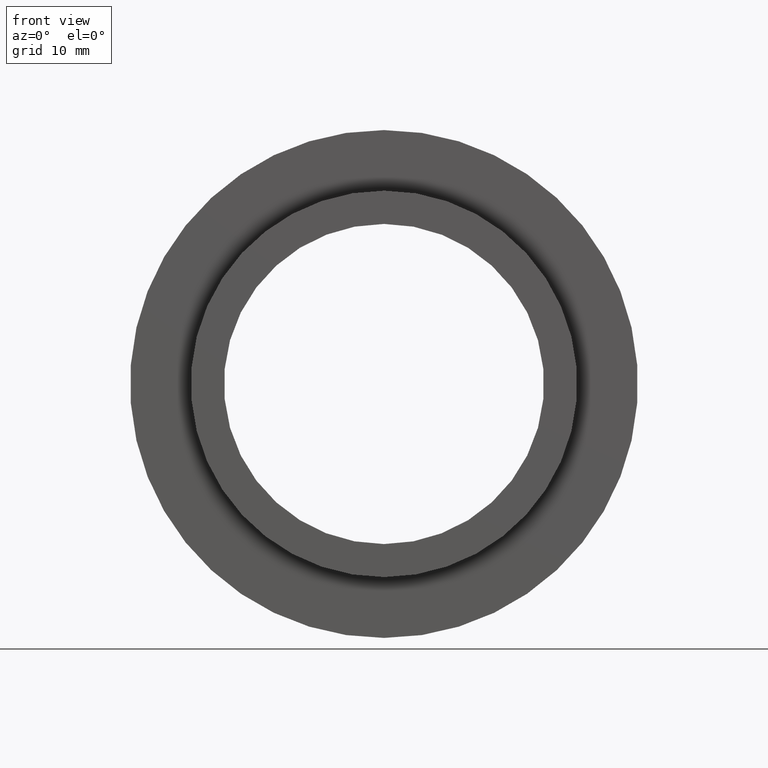
[diagram: clean part render]
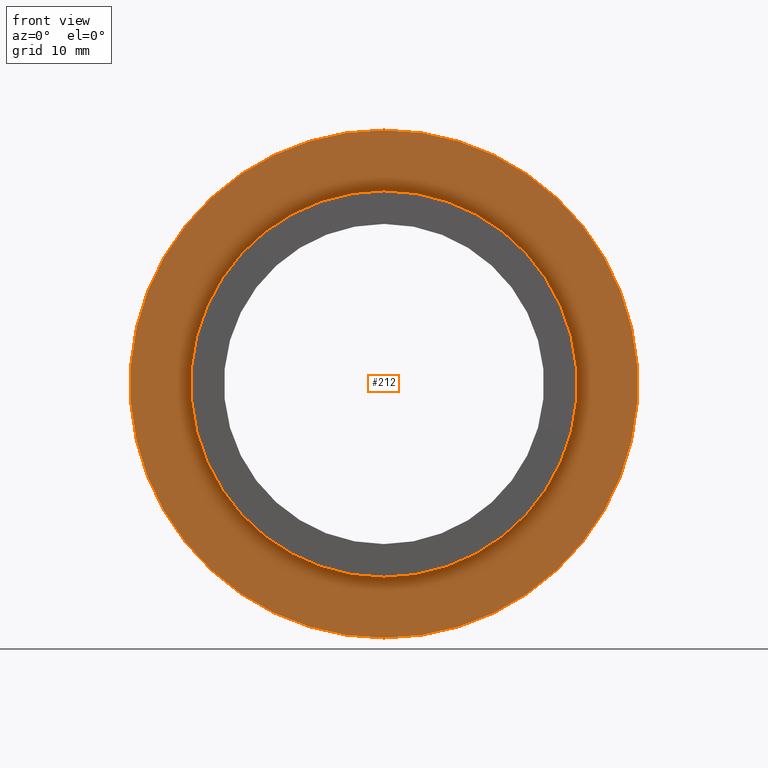
[diagram: same view with one face highlighted and labeled with its STEP entity id]
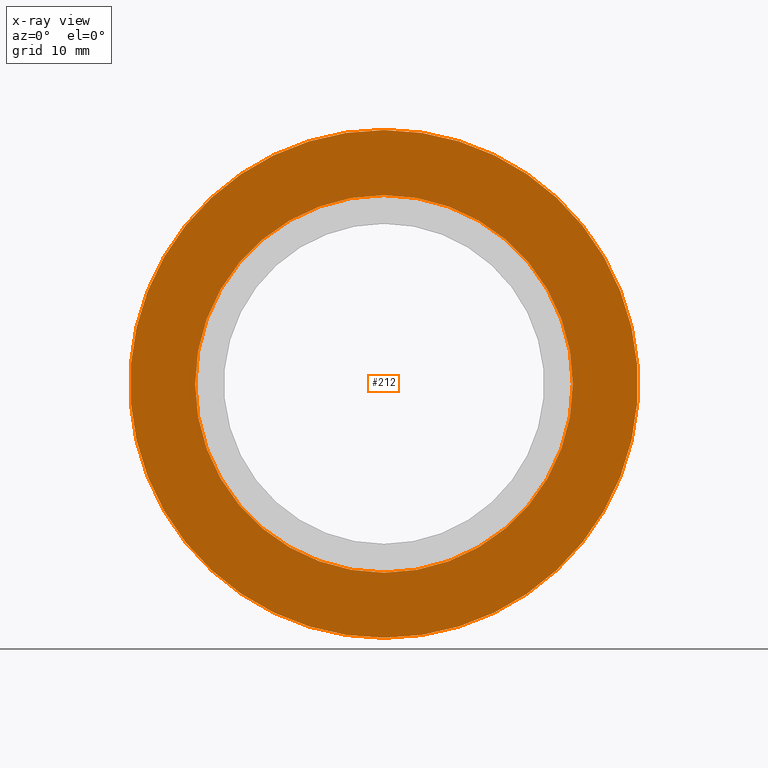
[diagram: x-ray of the same camera — body ghosted, the highlighted face saturated]
A machine part, front view. The second image highlights one B-rep face of the part: STEP entity #212.
The next image is the same camera in x-ray: the body ghosted, the highlighted face saturated — about 0% of this face is hidden behind the body in this view.
In plain terms, the highlighted planar face has unit normal (0, 1, 0).
Its self-contained STEP definition (entity closure, byte-faithful):
#10 = AXIS2_PLACEMENT_3D ( 'NONE', #488, #79, #645 ) ;
#27 = DIRECTION ( 'NONE',  ( -0.0000000000000000000, -1.000000000000000000, -0.0000000000000000000 ) ) ;
#44 = CARTESIAN_POINT ( 'NONE',  ( 2.816687638038912400E-015, 4.999999999999997300, 23.00000000000000000 ) ) ;
#67 = DIRECTION ( 'NONE',  ( 0.0000000000000000000, 0.0000000000000000000, -1.000000000000000000 ) ) ;
#79 = DIRECTION ( 'NONE',  ( 0.0000000000000000000, 1.000000000000000000, 0.0000000000000000000 ) ) ;
#94 = EDGE_CURVE ( 'NONE', #666, #118, #640, .T. ) ;
#116 = FACE_BOUND ( 'NONE', #181, .T. ) ;
#117 = DIRECTION ( 'NONE',  ( -0.0000000000000000000, -1.000000000000000000, -0.0000000000000000000 ) ) ;
#118 = VERTEX_POINT ( 'NONE', #588 ) ;
#146 = CIRCLE ( 'NONE', #596, 17.10000000000000100 ) ;
#167 = DIRECTION ( 'NONE',  ( 0.0000000000000000000, 0.0000000000000000000, -1.000000000000000000 ) ) ;
#170 = EDGE_CURVE ( 'NONE', #657, #458, #425, .T. ) ;
#181 = EDGE_LOOP ( 'NONE', ( #443, #287 ) ) ;
#205 = AXIS2_PLACEMENT_3D ( 'NONE', #471, #117, #167 ) ;
#206 = FACE_OUTER_BOUND ( 'NONE', #299, .T. ) ;
#212 = ADVANCED_FACE ( 'NONE', ( #116, #206 ), #223, .F. ) ;
#222 = ORIENTED_EDGE ( 'NONE', *, *, #526, .T. ) ;
#223 = PLANE ( 'NONE',  #10 ) ;
#287 = ORIENTED_EDGE ( 'NONE', *, *, #379, .F. ) ;
#295 = DIRECTION ( 'NONE',  ( -0.0000000000000000000, -1.000000000000000000, -0.0000000000000000000 ) ) ;
#299 = EDGE_LOOP ( 'NONE', ( #650, #222 ) ) ;
#316 = CARTESIAN_POINT ( 'NONE',  ( 0.0000000000000000000, 4.999999999999998200, -17.10000000000000100 ) ) ;
#326 = CARTESIAN_POINT ( 'NONE',  ( 0.0000000000000000000, 4.999999999999997300, 0.0000000000000000000 ) ) ;
#377 = AXIS2_PLACEMENT_3D ( 'NONE', #326, #27, #67 ) ;
#379 = EDGE_CURVE ( 'NONE', #118, #666, #146, .T. ) ;
#405 = CIRCLE ( 'NONE', #627, 23.00000000000000000 ) ;
#425 = CIRCLE ( 'NONE', #377, 23.00000000000000000 ) ;
#443 = ORIENTED_EDGE ( 'NONE', *, *, #94, .F. ) ;
#445 = CARTESIAN_POINT ( 'NONE',  ( 0.0000000000000000000, 4.999999999999998200, 0.0000000000000000000 ) ) ;
#451 = DIRECTION ( 'NONE',  ( 0.0000000000000000000, 0.0000000000000000000, -1.000000000000000000 ) ) ;
#458 = VERTEX_POINT ( 'NONE', #44 ) ;
#460 = CARTESIAN_POINT ( 'NONE',  ( 0.0000000000000000000, 4.999999999999997300, 0.0000000000000000000 ) ) ;
#471 = CARTESIAN_POINT ( 'NONE',  ( 0.0000000000000000000, 4.999999999999998200, 0.0000000000000000000 ) ) ;
#488 = CARTESIAN_POINT ( 'NONE',  ( -23.00000000000000000, 4.999999999999997300, 0.0000000000000000000 ) ) ;
#517 = DIRECTION ( 'NONE',  ( -0.0000000000000000000, -1.000000000000000000, -0.0000000000000000000 ) ) ;
#526 = EDGE_CURVE ( 'NONE', #458, #657, #405, .T. ) ;
#581 = CARTESIAN_POINT ( 'NONE',  ( 0.0000000000000000000, 4.999999999999997300, -23.00000000000000000 ) ) ;
#588 = CARTESIAN_POINT ( 'NONE',  ( 2.094146026541974000E-015, 4.999999999999998200, 17.10000000000000100 ) ) ;
#596 = AXIS2_PLACEMENT_3D ( 'NONE', #445, #295, #451 ) ;
#611 = DIRECTION ( 'NONE',  ( 0.0000000000000000000, 0.0000000000000000000, -1.000000000000000000 ) ) ;
#627 = AXIS2_PLACEMENT_3D ( 'NONE', #460, #517, #611 ) ;
#640 = CIRCLE ( 'NONE', #205, 17.10000000000000100 ) ;
#645 = DIRECTION ( 'NONE',  ( 0.0000000000000000000, -0.0000000000000000000, 1.000000000000000000 ) ) ;
#650 = ORIENTED_EDGE ( 'NONE', *, *, #170, .T. ) ;
#657 = VERTEX_POINT ( 'NONE', #581 ) ;
#666 = VERTEX_POINT ( 'NONE', #316 ) ;